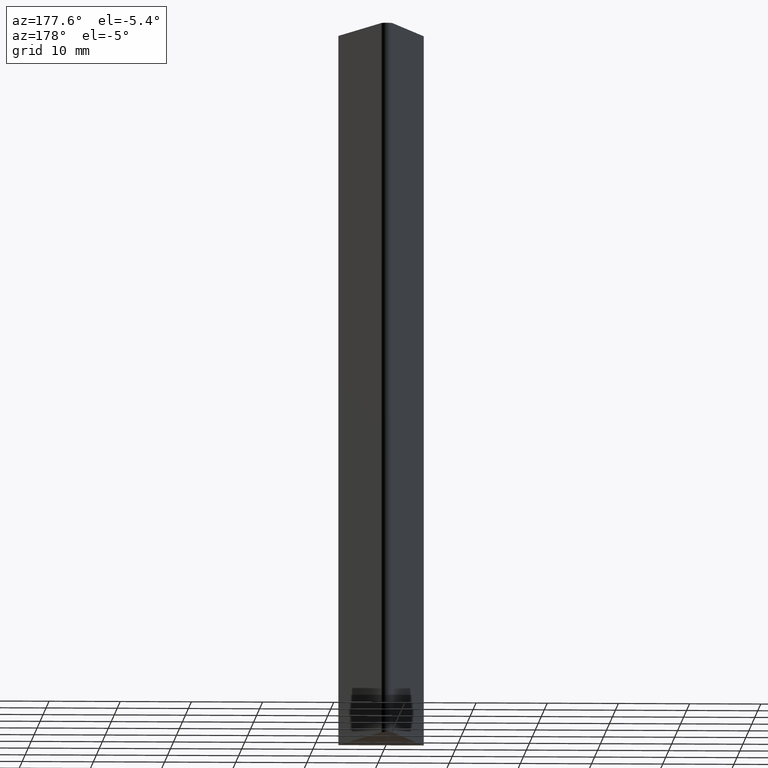
[diagram: clean part render]
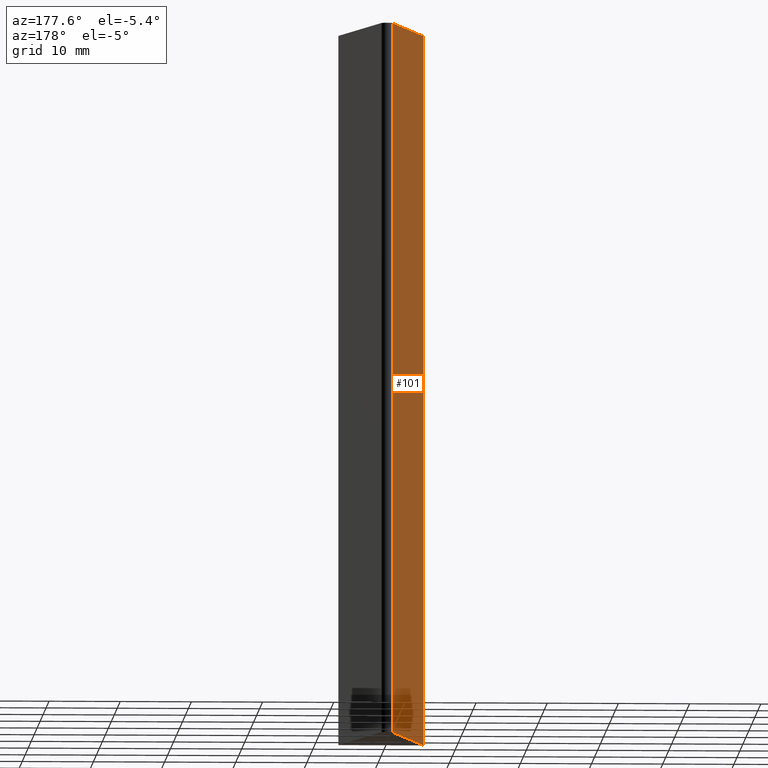
[diagram: same view with one face highlighted and labeled with its STEP entity id]
A machine part, auxiliary view. The second image highlights one B-rep face of the part: STEP entity #101.
In plain terms, the highlighted planar face has unit normal (-0.9659, 0.2588, 0).
Its self-contained STEP definition (entity closure, byte-faithful):
#18=FACE_OUTER_BOUND('',#24,.T.);
#24=EDGE_LOOP('',(#75,#76,#77,#78));
#33=LINE('',#173,#43);
#34=LINE('',#178,#44);
#35=LINE('',#179,#45);
#36=LINE('',#180,#46);
#43=VECTOR('',#143,10.);
#44=VECTOR('',#148,10.);
#45=VECTOR('',#149,10.);
#46=VECTOR('',#150,10.);
#53=VERTEX_POINT('',#170);
#54=VERTEX_POINT('',#172);
#55=VERTEX_POINT('',#176);
#56=VERTEX_POINT('',#177);
#61=EDGE_CURVE('',#54,#53,#33,.T.);
#63=EDGE_CURVE('',#55,#56,#34,.T.);
#64=EDGE_CURVE('',#56,#54,#35,.T.);
#65=EDGE_CURVE('',#55,#53,#36,.T.);
#75=ORIENTED_EDGE('',*,*,#63,.T.);
#76=ORIENTED_EDGE('',*,*,#64,.T.);
#77=ORIENTED_EDGE('',*,*,#61,.T.);
#78=ORIENTED_EDGE('',*,*,#65,.F.);
#96=PLANE('',#131);
#101=ADVANCED_FACE('',(#18),#96,.T.);
#131=AXIS2_PLACEMENT_3D('',#175,#146,#147);
#143=DIRECTION('',(-0.25881904510252,-0.965925826289068,0.));
#146=DIRECTION('center_axis',(-0.965925826289068,0.25881904510252,0.));
#147=DIRECTION('ref_axis',(0.,0.,1.));
#148=DIRECTION('',(0.25881904510252,0.965925826289068,0.));
#149=DIRECTION('',(0.,0.,-1.));
#150=DIRECTION('',(0.,0.,-1.));
#170=CARTESIAN_POINT('',(-6.,-1.11022302462516E-15,-50.));
#172=CARTESIAN_POINT('',(-0.806923339572389,19.380825944316,-50.));
#173=CARTESIAN_POINT('',(-6.,-1.11022302462516E-15,-50.));
#175=CARTESIAN_POINT('Origin',(-6.,-1.11022302462516E-15,0.));
#176=CARTESIAN_POINT('',(-6.,-1.11022302462516E-15,50.));
#177=CARTESIAN_POINT('',(-0.806923339572389,19.380825944316,50.));
#178=CARTESIAN_POINT('',(-6.,-1.11022302462516E-15,50.));
#179=CARTESIAN_POINT('',(-0.806923339572389,19.380825944316,0.));
#180=CARTESIAN_POINT('',(-6.,-1.11022302462516E-15,0.));